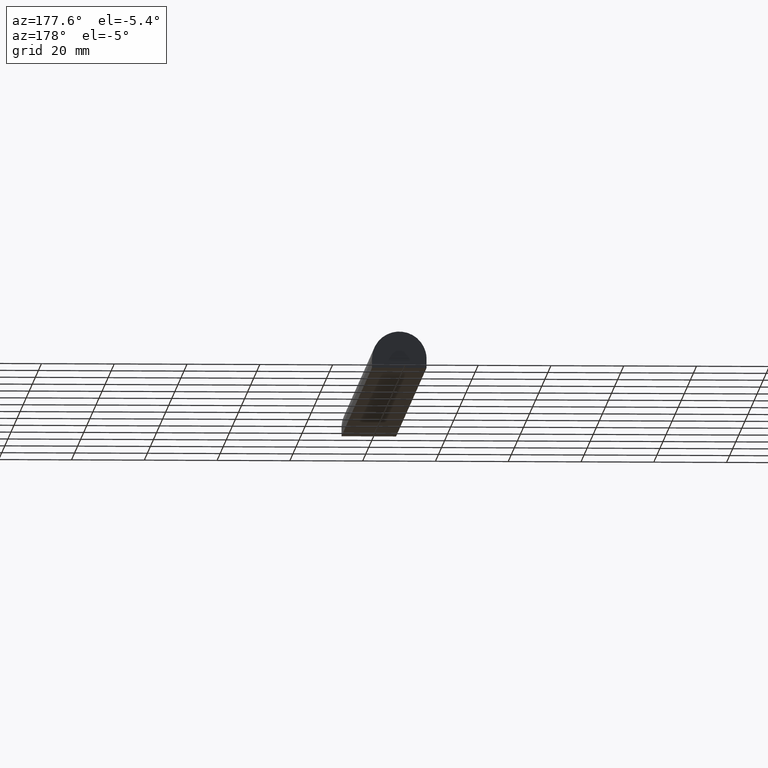
[diagram: clean part render]
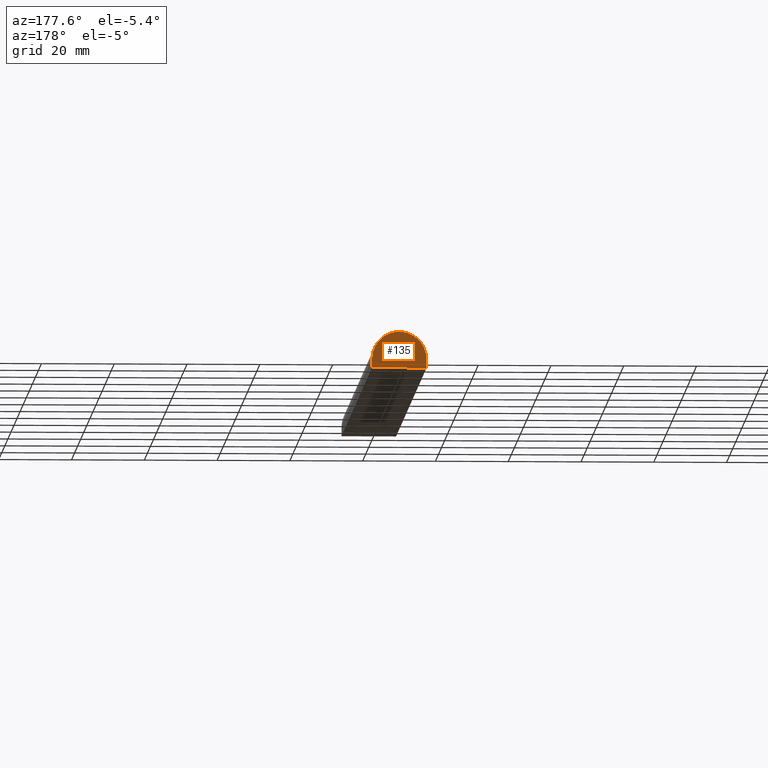
[diagram: same view with one face highlighted and labeled with its STEP entity id]
A machine part, auxiliary view. The second image highlights one B-rep face of the part: STEP entity #135.
In plain terms, the highlighted face is a freeform B-spline surface patch.
Its self-contained STEP definition (entity closure, byte-faithful):
#90=CARTESIAN_POINT('',(-8.249249970927089,200.0,5.499499980617363));
#91=CARTESIAN_POINT('',(8.249250373258443,200.0,5.499499980617363));
#92=CARTESIAN_POINT('',(-8.249249970927089,200.0,-5.499500248838928));
#93=CARTESIAN_POINT('',(8.249250373258443,200.0,-5.499500248838928));
#94=B_SPLINE_SURFACE_WITH_KNOTS('',1,1,((#90,#92),(#91,#93)),.UNSPECIFIED.,.F.,.F.,.U.,(2,2),(2,2),(0.0,16.498500344185530),(0.0,10.999000229456289),.UNSPECIFIED.);
#95=CARTESIAN_POINT('',(-7.500000000000000,200.0,-5.0));
#96=VERTEX_POINT('',#95);
#97=CARTESIAN_POINT('',(7.500000000000000,200.0,-5.0));
#98=VERTEX_POINT('',#97);
#99=CARTESIAN_POINT('',(-7.500000000000000,200.0,-5.0));
#100=CARTESIAN_POINT('',(7.500000000000000,200.0,-5.0));
#101=QUASI_UNIFORM_CURVE('',1,(#99,#100),.UNSPECIFIED.,.F.,.U.);
#102=EDGE_CURVE('',#96,#98,#101,.T.);
#103=ORIENTED_EDGE('',*,*,#102,.F.);
#104=CARTESIAN_POINT('',(-7.500000000000000,200.0,-2.500000000000000));
#105=VERTEX_POINT('',#104);
#106=CARTESIAN_POINT('',(-7.500000000000000,200.0,-2.500000000000000));
#107=CARTESIAN_POINT('',(-7.500000000000000,200.0,-5.0));
#108=QUASI_UNIFORM_CURVE('',1,(#106,#107),.UNSPECIFIED.,.F.,.U.);
#109=EDGE_CURVE('',#105,#96,#108,.T.);
#110=ORIENTED_EDGE('',*,*,#109,.F.);
#111=CARTESIAN_POINT('',(7.500000000000000,200.0,-2.500000000000000));
#112=VERTEX_POINT('',#111);
#113=CARTESIAN_POINT('',(7.500000000000000,200.0,-2.500000000000000));
#114=CARTESIAN_POINT('',(7.500000000000000,200.000000000000030,4.999999999999999));
#115=CARTESIAN_POINT('',(0.0,200.0,4.999999999999999));
#116=CARTESIAN_POINT('',(-7.500000000000000,200.000000000000030,4.999999999999999));
#117=CARTESIAN_POINT('',(-7.500000000000000,200.0,-2.500000000000000));
#125=(BOUNDED_CURVE()B_SPLINE_CURVE(2,(#113,#114,#115,#116,#117),.UNSPECIFIED.,.F.,.U.)B_SPLINE_CURVE_WITH_KNOTS((3,2,3),(0.0,0.500000000000000,1.0),.UNSPECIFIED.)CURVE()GEOMETRIC_REPRESENTATION_ITEM()RATIONAL_B_SPLINE_CURVE((1.0,0.707106781186547,1.0,0.707106781186547,1.0))REPRESENTATION_ITEM(''));
#126=EDGE_CURVE('',#112,#105,#125,.T.);
#127=ORIENTED_EDGE('',*,*,#126,.F.);
#128=CARTESIAN_POINT('',(7.500000000000000,200.0,-5.0));
#129=CARTESIAN_POINT('',(7.500000000000000,200.0,-2.500000000000000));
#130=QUASI_UNIFORM_CURVE('',1,(#128,#129),.UNSPECIFIED.,.F.,.U.);
#131=EDGE_CURVE('',#98,#112,#130,.T.);
#132=ORIENTED_EDGE('',*,*,#131,.F.);
#133=EDGE_LOOP('',(#103,#110,#127,#132));
#134=FACE_OUTER_BOUND('',#133,.T.);
#135=ADVANCED_FACE('',(#134),#94,.T.);